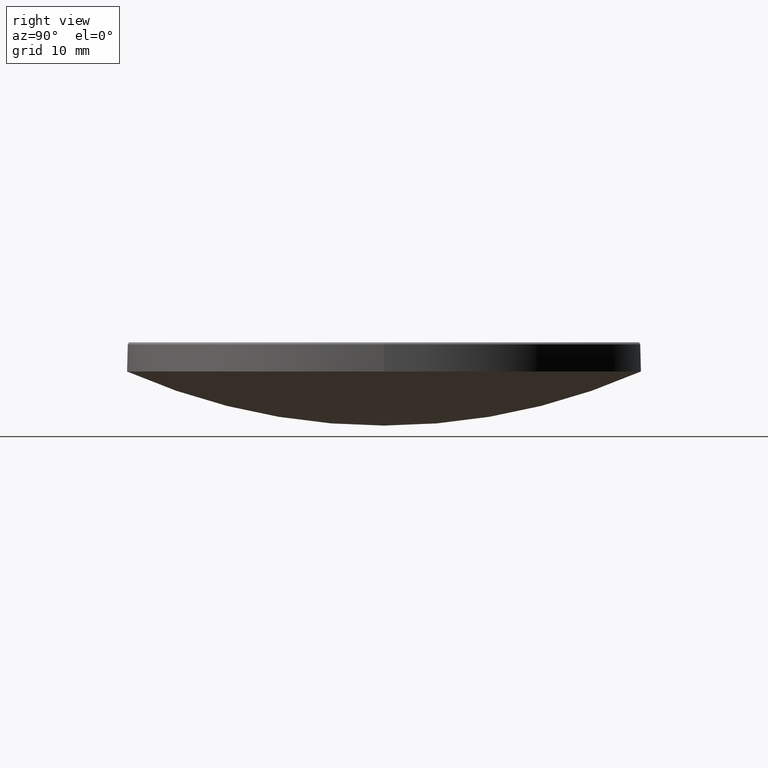
[diagram: clean part render]
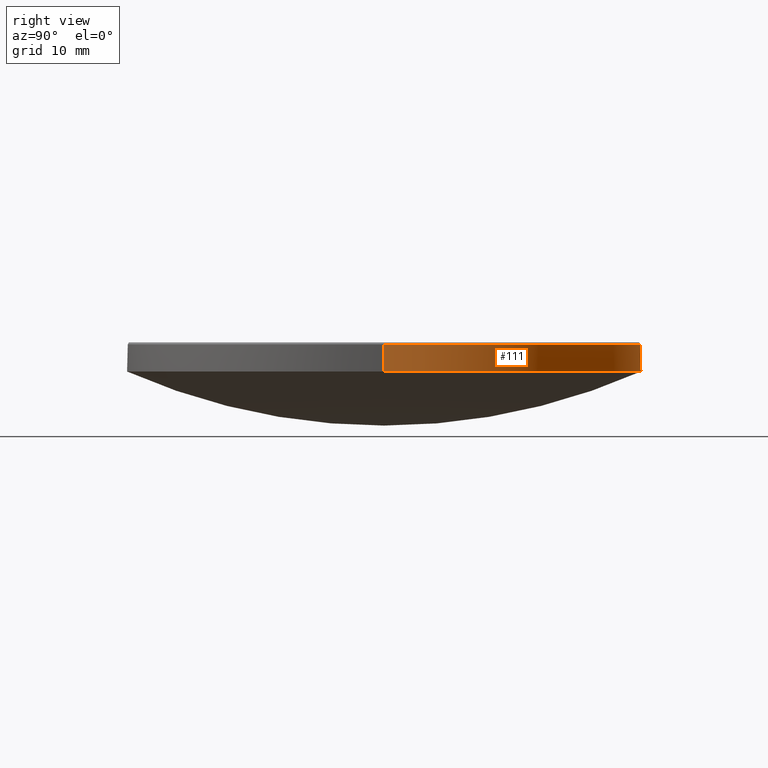
[diagram: same view with one face highlighted and labeled with its STEP entity id]
A machine part, right view. The second image highlights one B-rep face of the part: STEP entity #111.
In plain terms, the highlighted cylindrical surface (partial cylindrical patch) has radius 25.4 mm, axis along (-0, -0, -1).
Its self-contained STEP definition (entity closure, byte-faithful):
#2 = AXIS2_PLACEMENT_3D ( 'NONE', #142, #222, #244 ) ;
#5 = VECTOR ( 'NONE', #159, 1000.000000000000000 ) ;
#7 = VERTEX_POINT ( 'NONE', #95 ) ;
#9 = ORIENTED_EDGE ( 'NONE', *, *, #91, .F. ) ;
#11 = VECTOR ( 'NONE', #187, 1000.000000000000000 ) ;
#13 = CARTESIAN_POINT ( 'NONE',  ( -25.39999999999999503, 0.000000000000000000, 14.00000000000000000 ) ) ;
#18 = CARTESIAN_POINT ( 'NONE',  ( 0.000000000000000000, 0.000000000000000000, 14.00000000000000000 ) ) ;
#19 = EDGE_CURVE ( 'NONE', #223, #176, #182, .T. ) ;
#35 = CARTESIAN_POINT ( 'NONE',  ( 25.39999999999999503, 3.110602869834276471E-15, 14.00000000000000000 ) ) ;
#37 = DIRECTION ( 'NONE',  ( -0.000000000000000000, -0.000000000000000000, 1.000000000000000000 ) ) ;
#47 = EDGE_LOOP ( 'NONE', ( #121, #164, #141, #139, #9 ) ) ;
#68 = CIRCLE ( 'NONE', #220, 25.39999999999999503 ) ;
#74 = DIRECTION ( 'NONE',  ( -0.000000000000000000, -0.000000000000000000, 1.000000000000000000 ) ) ;
#77 = CARTESIAN_POINT ( 'NONE',  ( -25.39999999999999858, 0.000000000000000000, 16.69999999999996376 ) ) ;
#78 = LINE ( 'NONE', #230, #5 ) ;
#89 = FACE_OUTER_BOUND ( 'NONE', #47, .T. ) ;
#90 = CARTESIAN_POINT ( 'NONE',  ( 25.39999999999999858, 3.110602869834276865E-15, 20.00000000000000000 ) ) ;
#91 = EDGE_CURVE ( 'NONE', #223, #202, #78, .T. ) ;
#95 = CARTESIAN_POINT ( 'NONE',  ( 0.000000000000000000, 25.39999999999999147, 14.00000000000000178 ) ) ;
#105 = LINE ( 'NONE', #90, #11 ) ;
#111 = ADVANCED_FACE ( 'NONE', ( #89 ), #235, .T. ) ;
#119 = VERTEX_POINT ( 'NONE', #35 ) ;
#121 = ORIENTED_EDGE ( 'NONE', *, *, #19, .T. ) ;
#139 = ORIENTED_EDGE ( 'NONE', *, *, #243, .T. ) ;
#141 = ORIENTED_EDGE ( 'NONE', *, *, #177, .T. ) ;
#142 = CARTESIAN_POINT ( 'NONE',  ( 0.000000000000000000, 0.000000000000000000, 16.69999999999996376 ) ) ;
#149 = CARTESIAN_POINT ( 'NONE',  ( 0.000000000000000000, 0.000000000000000000, 20.00000000000000000 ) ) ;
#152 = DIRECTION ( 'NONE',  ( -1.000000000000000000, 0.000000000000000000, 0.000000000000000000 ) ) ;
#154 = DIRECTION ( 'NONE',  ( -0.000000000000000000, -0.000000000000000000, -1.000000000000000000 ) ) ;
#159 = DIRECTION ( 'NONE',  ( -0.000000000000000000, -0.000000000000000000, -1.000000000000000000 ) ) ;
#164 = ORIENTED_EDGE ( 'NONE', *, *, #193, .T. ) ;
#176 = VERTEX_POINT ( 'NONE', #279 ) ;
#177 = EDGE_CURVE ( 'NONE', #119, #7, #186, .T. ) ;
#178 = AXIS2_PLACEMENT_3D ( 'NONE', #149, #154, #152 ) ;
#182 = CIRCLE ( 'NONE', #2, 25.39999999999999858 ) ;
#186 = CIRCLE ( 'NONE', #260, 25.39999999999999503 ) ;
#187 = DIRECTION ( 'NONE',  ( -0.000000000000000000, -0.000000000000000000, -1.000000000000000000 ) ) ;
#193 = EDGE_CURVE ( 'NONE', #176, #119, #105, .T. ) ;
#202 = VERTEX_POINT ( 'NONE', #13 ) ;
#220 = AXIS2_PLACEMENT_3D ( 'NONE', #264, #74, #242 ) ;
#222 = DIRECTION ( 'NONE',  ( 0.000000000000000000, 0.000000000000000000, -1.000000000000000000 ) ) ;
#223 = VERTEX_POINT ( 'NONE', #77 ) ;
#230 = CARTESIAN_POINT ( 'NONE',  ( -25.39999999999999858, 0.000000000000000000, 20.00000000000000000 ) ) ;
#235 = CYLINDRICAL_SURFACE ( 'NONE', #178, 25.39999999999999858 ) ;
#236 = DIRECTION ( 'NONE',  ( 1.000000000000000000, 0.000000000000000000, 0.000000000000000000 ) ) ;
#242 = DIRECTION ( 'NONE',  ( 1.000000000000000000, 0.000000000000000000, 0.000000000000000000 ) ) ;
#243 = EDGE_CURVE ( 'NONE', #7, #202, #68, .T. ) ;
#244 = DIRECTION ( 'NONE',  ( 1.000000000000000000, 0.000000000000000000, 0.000000000000000000 ) ) ;
#260 = AXIS2_PLACEMENT_3D ( 'NONE', #18, #37, #236 ) ;
#264 = CARTESIAN_POINT ( 'NONE',  ( 0.000000000000000000, 0.000000000000000000, 14.00000000000000000 ) ) ;
#279 = CARTESIAN_POINT ( 'NONE',  ( 25.39999999999999858, 3.110602869834276865E-15, 16.69999999999996376 ) ) ;